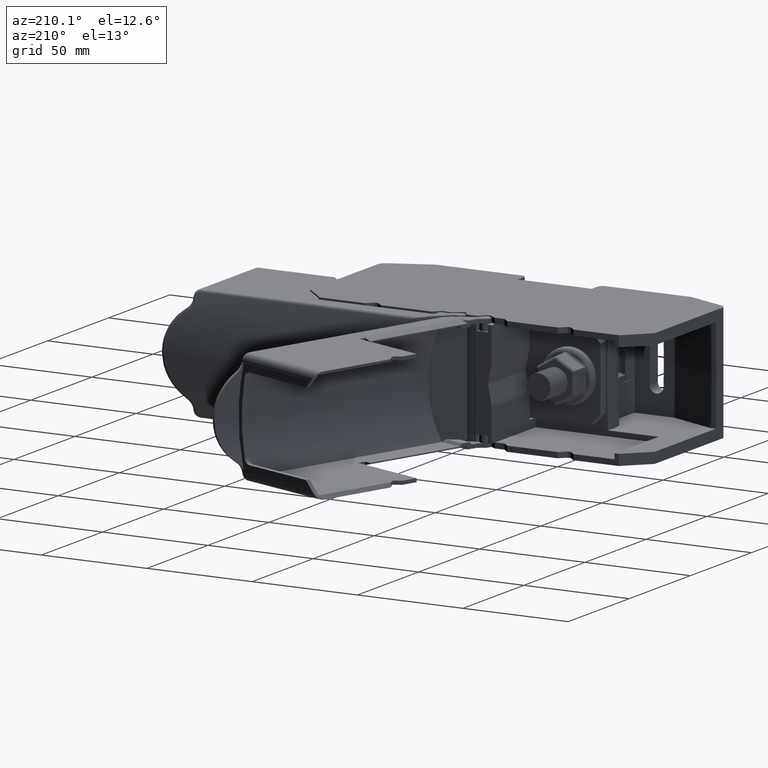
[diagram: clean part render]
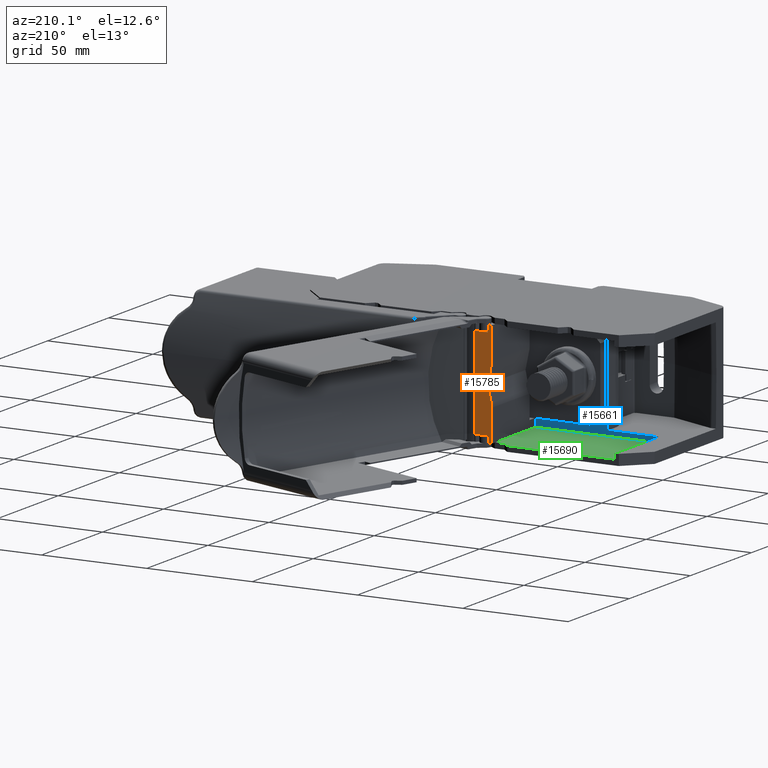
[diagram: same view with three faces highlighted in distinct colors, each labeled with its STEP entity id]
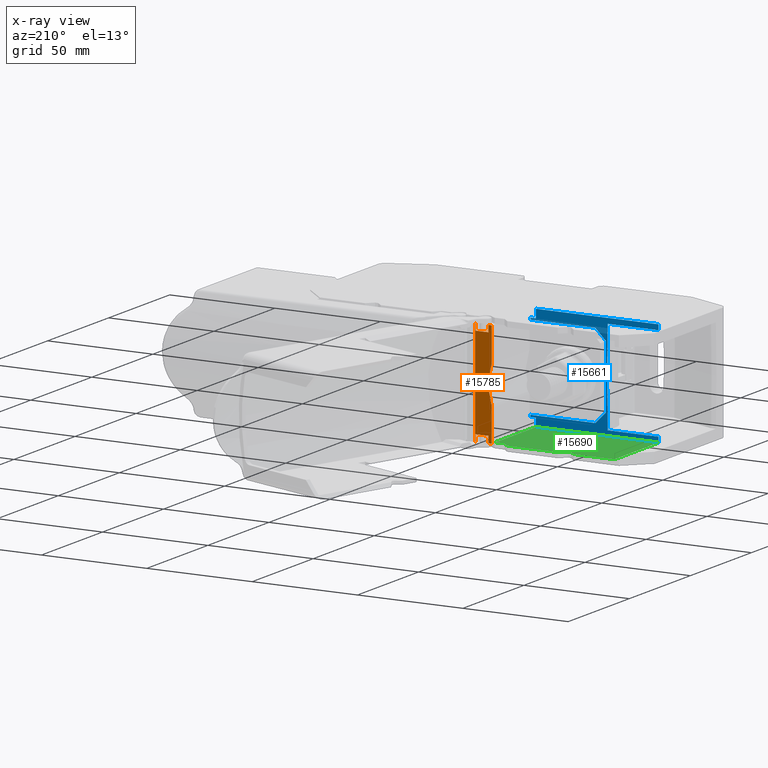
[diagram: x-ray of the same camera — body ghosted, the three highlighted faces saturated]
A machine part, auxiliary view with three faces highlighted in distinct colors.
The next image is the same camera in x-ray (body ghosted, the three faces saturated) — at least one of them is partly hidden behind the body in this view.
Their STEP definitions:

[orange] entity #15785 — the highlighted planar face has unit normal (0, 1, 0).
#2366 = VERTEX_POINT ( 'NONE', #39024 ) ;
#2369 = VERTEX_POINT ( 'NONE', #39052 ) ;
#2370 = VERTEX_POINT ( 'NONE', #39069 ) ;
#2421 = VERTEX_POINT ( 'NONE', #39118 ) ;
#2429 = VERTEX_POINT ( 'NONE', #39097 ) ;
#2431 = VERTEX_POINT ( 'NONE', #39111 ) ;
#2440 = VERTEX_POINT ( 'NONE', #39115 ) ;
#2441 = VERTEX_POINT ( 'NONE', #39095 ) ;
#2476 = VERTEX_POINT ( 'NONE', #39150 ) ;
#2478 = VERTEX_POINT ( 'NONE', #39151 ) ;
#2487 = VERTEX_POINT ( 'NONE', #39193 ) ;
#2521 = VERTEX_POINT ( 'NONE', #39212 ) ;
#2579 = VERTEX_POINT ( 'NONE', #39273 ) ;
#3813 = VECTOR ( 'NONE', #28216, 1000.000000000000000 ) ;
#3882 = VECTOR ( 'NONE', #28222, 1000.000000000000000 ) ;
#4003 = VECTOR ( 'NONE', #16701, 1000.000000000000000 ) ;
#4007 = VECTOR ( 'NONE', #16774, 1000.000000000000000 ) ;
#4019 = VECTOR ( 'NONE', #16799, 1000.000000000000000 ) ;
#8766 = EDGE_CURVE ( 'NONE', #20758, #20816, #15264, .T. ) ;
#15264 = B_SPLINE_CURVE_WITH_KNOTS ( 'NONE', 3,
 ( #37481, #37471, #37462, #37449 ),
 .UNSPECIFIED., .F., .F.,
 ( 4, 4 ),
 ( 0.0000000000000000000, 1.000000000000000000 ),
 .UNSPECIFIED. ) ;
#15441 = B_SPLINE_CURVE_WITH_KNOTS ( 'NONE', 3,
 ( #30685, #30673, #30684, #30678 ),
 .UNSPECIFIED., .F., .F.,
 ( 4, 4 ),
 ( 0.0000000000000000000, 1.000000000000000000 ),
 .UNSPECIFIED. ) ;
#15483 = B_SPLINE_CURVE_WITH_KNOTS ( 'NONE', 3,
 ( #28094, #28017, #28018, #28053 ),
 .UNSPECIFIED., .F., .F.,
 ( 4, 4 ),
 ( 0.0000000000000000000, 1.000000000000000000 ),
 .UNSPECIFIED. ) ;
#15484 = B_SPLINE_CURVE_WITH_KNOTS ( 'NONE', 3,
 ( #28190, #28192, #28145, #28147 ),
 .UNSPECIFIED., .F., .F.,
 ( 4, 4 ),
 ( 0.0000000000000000000, 1.000000000000000000 ),
 .UNSPECIFIED. ) ;
#15488 = B_SPLINE_CURVE_WITH_KNOTS ( 'NONE', 3,
 ( #28678, #28680, #28684, #28682 ),
 .UNSPECIFIED., .F., .F.,
 ( 4, 4 ),
 ( 0.0000000000000000000, 1.000000000000000000 ),
 .UNSPECIFIED. ) ;
#15497 = B_SPLINE_CURVE_WITH_KNOTS ( 'NONE', 3,
 ( #28286, #28229, #28240, #28231 ),
 .UNSPECIFIED., .F., .F.,
 ( 4, 4 ),
 ( 0.0000000000000000000, 1.000000000000000000 ),
 .UNSPECIFIED. ) ;
#15498 = B_SPLINE_CURVE_WITH_KNOTS ( 'NONE', 3,
 ( #27948, #27928, #27908, #27915 ),
 .UNSPECIFIED., .F., .F.,
 ( 4, 4 ),
 ( 0.0000000000000000000, 1.000000000000000000 ),
 .UNSPECIFIED. ) ;
#15503 = B_SPLINE_CURVE_WITH_KNOTS ( 'NONE', 3,
 ( #27937, #27920, #27942, #27943 ),
 .UNSPECIFIED., .F., .F.,
 ( 4, 4 ),
 ( 0.0000000000000000000, 1.000000000000000000 ),
 .UNSPECIFIED. ) ;
#15520 = B_SPLINE_CURVE_WITH_KNOTS ( 'NONE', 3,
 ( #27934, #27935, #27946, #27936 ),
 .UNSPECIFIED., .F., .F.,
 ( 4, 4 ),
 ( 0.0000000000000000000, 1.000000000000000000 ),
 .UNSPECIFIED. ) ;
#15529 = B_SPLINE_CURVE_WITH_KNOTS ( 'NONE', 3,
 ( #28568, #28618, #28592, #28593 ),
 .UNSPECIFIED., .F., .F.,
 ( 4, 4 ),
 ( 0.0000000000000000000, 1.000000000000000000 ),
 .UNSPECIFIED. ) ;
#15537 = B_SPLINE_CURVE_WITH_KNOTS ( 'NONE', 3,
 ( #27988, #27989, #28023, #28086 ),
 .UNSPECIFIED., .F., .F.,
 ( 4, 4 ),
 ( 0.0000000000000000000, 1.000000000000000000 ),
 .UNSPECIFIED. ) ;
#15541 = B_SPLINE_CURVE_WITH_KNOTS ( 'NONE', 3,
 ( #27966, #27969, #27984, #27997 ),
 .UNSPECIFIED., .F., .F.,
 ( 4, 4 ),
 ( 0.0000000000000000000, 1.000000000000000000 ),
 .UNSPECIFIED. ) ;
#15785 = ADVANCED_FACE ( 'NONE', ( #26399 ), #26472, .T. ) ;
#16649 = LINE ( 'NONE', #16689, #4003 ) ;
#16689 = CARTESIAN_POINT ( 'NONE',  ( 449.4385251663119900, -196.3707966989011600, -17.80000000002209100 ) ) ;
#16701 = DIRECTION ( 'NONE',  ( -1.000000000000000000, -0.0000000000000000000, 0.0000000000000000000 ) ) ;
#16758 = LINE ( 'NONE', #16780, #4019 ) ;
#16770 = CARTESIAN_POINT ( 'NONE',  ( 449.4385251663119900, -196.3707966989011600, -20.89999999998940100 ) ) ;
#16774 = DIRECTION ( 'NONE',  ( -1.000000000000000000, -0.0000000000000000000, 0.0000000000000000000 ) ) ;
#16780 = CARTESIAN_POINT ( 'NONE',  ( 429.1083979782019900, -196.3707966989011600, -23.40000000000410200 ) ) ;
#16799 = DIRECTION ( 'NONE',  ( -0.0000000000000000000, -0.0000000000000000000, -1.000000000000000000 ) ) ;
#16803 = LINE ( 'NONE', #16770, #4007 ) ;
#18322 = ORIENTED_EDGE ( 'NONE', *, *, #33114, .T. ) ;
#18357 = ORIENTED_EDGE ( 'NONE', *, *, #32653, .T. ) ;
#18360 = ORIENTED_EDGE ( 'NONE', *, *, #33135, .T. ) ;
#18361 = ORIENTED_EDGE ( 'NONE', *, *, #33184, .T. ) ;
#18368 = ORIENTED_EDGE ( 'NONE', *, *, #33163, .T. ) ;
#18370 = ORIENTED_EDGE ( 'NONE', *, *, #8766, .T. ) ;
#18378 = ORIENTED_EDGE ( 'NONE', *, *, #33335, .T. ) ;
#18379 = ORIENTED_EDGE ( 'NONE', *, *, #33621, .F. ) ;
#18390 = ORIENTED_EDGE ( 'NONE', *, *, #33182, .T. ) ;
#18399 = ORIENTED_EDGE ( 'NONE', *, *, #33192, .T. ) ;
#18403 = ORIENTED_EDGE ( 'NONE', *, *, #33112, .T. ) ;
#18405 = ORIENTED_EDGE ( 'NONE', *, *, #33072, .T. ) ;
#18406 = ORIENTED_EDGE ( 'NONE', *, *, #33297, .T. ) ;
#18416 = ORIENTED_EDGE ( 'NONE', *, *, #33063, .T. ) ;
#18424 = ORIENTED_EDGE ( 'NONE', *, *, #33074, .T. ) ;
#18429 = ORIENTED_EDGE ( 'NONE', *, *, #33543, .T. ) ;
#18438 = ORIENTED_EDGE ( 'NONE', *, *, #33603, .T. ) ;
#20421 = EDGE_LOOP ( 'NONE', ( #18368, #18438, #18379, #18360, #18416, #18424, #18322, #18390, #18406, #18361, #18378, #18403, #18370, #18399, #18357, #18405, #18429 ) ) ;
#20758 = VERTEX_POINT ( 'NONE', #29798 ) ;
#20816 = VERTEX_POINT ( 'NONE', #29820 ) ;
#21257 = VERTEX_POINT ( 'NONE', #30224 ) ;
#21285 = VERTEX_POINT ( 'NONE', #30218 ) ;
#24471 = AXIS2_PLACEMENT_3D ( 'NONE', #26492, #26535, #26576 ) ;
#26399 = FACE_OUTER_BOUND ( 'NONE', #20421, .T. ) ;
#26472 = PLANE ( 'NONE',  #24471 ) ;
#26492 = CARTESIAN_POINT ( 'NONE',  ( 449.4385251663119900, -196.3707966989011600, -23.40000000000410200 ) ) ;
#26535 = DIRECTION ( 'NONE',  ( 0.0000000000000000000, 1.000000000000000000, 0.0000000000000000000 ) ) ;
#26576 = DIRECTION ( 'NONE',  ( 0.0000000000000000000, -0.0000000000000000000, 1.000000000000000000 ) ) ;
#27908 = CARTESIAN_POINT ( 'NONE',  ( 430.6702905426287200, -196.3707966989011600, 1.432354379845847300 ) ) ;
#27915 = CARTESIAN_POINT ( 'NONE',  ( 430.9710220002157300, -196.3707966306635300, 4.000010535679575000 ) ) ;
#27920 = CARTESIAN_POINT ( 'NONE',  ( 430.6702901869073200, -196.3707966989011600, 6.567659479159903700 ) ) ;
#27928 = CARTESIAN_POINT ( 'NONE',  ( 430.1568132109489400, -196.3707966989011600, -1.092027747636443700 ) ) ;
#27934 = CARTESIAN_POINT ( 'NONE',  ( 436.7499328640030300, -196.3711647729648700, -20.90000000002211400 ) ) ;
#27935 = CARTESIAN_POINT ( 'NONE',  ( 436.7499328640030300, -196.3707966989011600, -19.86666666667677800 ) ) ;
#27936 = CARTESIAN_POINT ( 'NONE',  ( 436.7499328640029100, -196.3711647729285800, -17.80000000002227300 ) ) ;
#27937 = CARTESIAN_POINT ( 'NONE',  ( 430.9710220002157300, -196.3707966306635300, 4.000010535679575000 ) ) ;
#27942 = CARTESIAN_POINT ( 'NONE',  ( 430.1568136777064500, -196.3707966989011600, 9.092034582853688800 ) ) ;
#27943 = CARTESIAN_POINT ( 'NONE',  ( 429.4305924726131700, -196.3707966580836600, 11.57313584676092700 ) ) ;
#27946 = CARTESIAN_POINT ( 'NONE',  ( 436.7499328640030300, -196.3707966989011600, -18.83333333334943300 ) ) ;
#27948 = CARTESIAN_POINT ( 'NONE',  ( 429.4305900051764400, -196.3707966989011600, -3.573135846767276000 ) ) ;
#27966 = CARTESIAN_POINT ( 'NONE',  ( 436.7499353313844500, -196.3711661739804700, 25.80000000000373800 ) ) ;
#27969 = CARTESIAN_POINT ( 'NONE',  ( 436.7499353313913800, -196.3707966989011600, 26.83333333334276500 ) ) ;
#27984 = CARTESIAN_POINT ( 'NONE',  ( 436.7499353313913800, -196.3707966989011600, 27.86666666668186900 ) ) ;
#27988 = CARTESIAN_POINT ( 'NONE',  ( 429.4305924726131700, -196.3707966580836600, 11.57313584676092700 ) ) ;
#27989 = CARTESIAN_POINT ( 'NONE',  ( 429.2159018500348100, -196.3707966989011600, 12.30692204748441100 ) ) ;
#27997 = CARTESIAN_POINT ( 'NONE',  ( 436.7499353313845600, -196.3711661587154000, 28.90000000002121900 ) ) ;
#28017 = CARTESIAN_POINT ( 'NONE',  ( 429.1085020402731500, -196.3707966989011600, -5.056089342955340600 ) ) ;
#28018 = CARTESIAN_POINT ( 'NONE',  ( 429.2158993825979700, -196.3707966989011600, -4.306922047490669300 ) ) ;
#28023 = CARTESIAN_POINT ( 'NONE',  ( 429.1085045077100500, -196.3707966989011600, 13.05608934294909900 ) ) ;
#28053 = CARTESIAN_POINT ( 'NONE',  ( 429.4305900051764400, -196.3707966989011600, -3.573135846767276000 ) ) ;
#28086 = CARTESIAN_POINT ( 'NONE',  ( 429.1084004456388900, -196.3707966988813800, 13.82063773315498200 ) ) ;
#28094 = CARTESIAN_POINT ( 'NONE',  ( 429.1083979782019900, -196.3707966989011600, -5.820637733161330400 ) ) ;
#28145 = CARTESIAN_POINT ( 'NONE',  ( 430.6539625409750400, -196.3707966989011600, -19.86666666666696200 ) ) ;
#28147 = CARTESIAN_POINT ( 'NONE',  ( 430.6539625409750400, -196.3711539379481500, -20.89999999998938300 ) ) ;
#28190 = CARTESIAN_POINT ( 'NONE',  ( 430.6539625409751000, -196.3711647729271600, -17.80000000002228000 ) ) ;
#28192 = CARTESIAN_POINT ( 'NONE',  ( 430.6539625409750400, -196.3707966989011600, -18.83333333334452700 ) ) ;
#28216 = DIRECTION ( 'NONE',  ( 0.0000000000000000000, -0.0000000000000000000, 1.000000000000000000 ) ) ;
#28222 = DIRECTION ( 'NONE',  ( -0.0000000000000000000, 0.0000000000000000000, -1.000000000000000000 ) ) ;
#28229 = CARTESIAN_POINT ( 'NONE',  ( 430.6539650083647100, -196.3707966989011600, 27.86666666666639000 ) ) ;
#28231 = CARTESIAN_POINT ( 'NONE',  ( 430.6539650083576600, -196.3711660439219900, 25.80000000000373500 ) ) ;
#28240 = CARTESIAN_POINT ( 'NONE',  ( 430.6539650083647100, -196.3707966989011600, 26.83333333333502300 ) ) ;
#28244 = LINE ( 'NONE', #28305, #3882 ) ;
#28265 = CARTESIAN_POINT ( 'NONE',  ( 429.1084004456388900, -196.3707966989011600, -23.40000000000410200 ) ) ;
#28286 = CARTESIAN_POINT ( 'NONE',  ( 430.6539650083579400, -196.3711551715317100, 28.90000000000893400 ) ) ;
#28305 = CARTESIAN_POINT ( 'NONE',  ( 436.9897283062944700, -196.3707966989011600, -23.40000000000410200 ) ) ;
#28307 = LINE ( 'NONE', #28265, #3813 ) ;
#28568 = CARTESIAN_POINT ( 'NONE',  ( 429.1084001461302400, -196.3707966988316400, 28.89999999999776000 ) ) ;
#28592 = CARTESIAN_POINT ( 'NONE',  ( 430.1387768207894200, -196.3707966989011600, 28.89999999999775700 ) ) ;
#28593 = CARTESIAN_POINT ( 'NONE',  ( 430.6539650083579400, -196.3711551715317100, 28.90000000000893400 ) ) ;
#28618 = CARTESIAN_POINT ( 'NONE',  ( 429.6235886332141800, -196.3707966989011600, 28.89999999999775700 ) ) ;
#28678 = CARTESIAN_POINT ( 'NONE',  ( 430.6539650083576600, -196.3711660439219900, 25.80000000000373500 ) ) ;
#28680 = CARTESIAN_POINT ( 'NONE',  ( 432.6859551160403000, -196.3707966989011600, 25.80000000000365600 ) ) ;
#28682 = CARTESIAN_POINT ( 'NONE',  ( 436.7499353313844500, -196.3711661739804700, 25.80000000000373800 ) ) ;
#28684 = CARTESIAN_POINT ( 'NONE',  ( 434.7179452237158400, -196.3707966989011600, 25.80000000000365600 ) ) ;
#29798 = CARTESIAN_POINT ( 'NONE',  ( 436.7499353313845600, -196.3711661587154000, 28.90000000002121900 ) ) ;
#29820 = CARTESIAN_POINT ( 'NONE',  ( 436.9897282685740800, -196.3707978103285300, 28.90000000000741300 ) ) ;
#30218 = CARTESIAN_POINT ( 'NONE',  ( 436.9897282119928300, -196.3707976241422000, -20.90000000000412700 ) ) ;
#30224 = CARTESIAN_POINT ( 'NONE',  ( 436.7499328640030300, -196.3711647729648700, -20.90000000002211400 ) ) ;
#30673 = CARTESIAN_POINT ( 'NONE',  ( 436.9097964921973000, -196.3707966989011600, -20.90000000000412000 ) ) ;
#30678 = CARTESIAN_POINT ( 'NONE',  ( 436.7499328640030300, -196.3711647729648700, -20.90000000002211400 ) ) ;
#30684 = CARTESIAN_POINT ( 'NONE',  ( 436.8298646781001900, -196.3707966989011600, -20.90000000000412000 ) ) ;
#30685 = CARTESIAN_POINT ( 'NONE',  ( 436.9897282119928300, -196.3707976241422000, -20.90000000000412700 ) ) ;
#32653 = EDGE_CURVE ( 'NONE', #21285, #21257, #15441, .T. ) ;
#33063 = EDGE_CURVE ( 'NONE', #2369, #2441, #15498, .T. ) ;
#33072 = EDGE_CURVE ( 'NONE', #21257, #2431, #15520, .T. ) ;
#33074 = EDGE_CURVE ( 'NONE', #2441, #2421, #15503, .T. ) ;
#33112 = EDGE_CURVE ( 'NONE', #2429, #20758, #15541, .T. ) ;
#33114 = EDGE_CURVE ( 'NONE', #2421, #2440, #15537, .T. ) ;
#33135 = EDGE_CURVE ( 'NONE', #2487, #2369, #15483, .T. ) ;
#33163 = EDGE_CURVE ( 'NONE', #2478, #2476, #15484, .T. ) ;
#33182 = EDGE_CURVE ( 'NONE', #2440, #2521, #28307, .T. ) ;
#33184 = EDGE_CURVE ( 'NONE', #2366, #2370, #15497, .T. ) ;
#33192 = EDGE_CURVE ( 'NONE', #20816, #21285, #28244, .T. ) ;
#33297 = EDGE_CURVE ( 'NONE', #2521, #2366, #15529, .T. ) ;
#33335 = EDGE_CURVE ( 'NONE', #2370, #2429, #15488, .T. ) ;
#33543 = EDGE_CURVE ( 'NONE', #2431, #2478, #16649, .T. ) ;
#33603 = EDGE_CURVE ( 'NONE', #2476, #2579, #16803, .T. ) ;
#33621 = EDGE_CURVE ( 'NONE', #2487, #2579, #16758, .T. ) ;
#37449 = CARTESIAN_POINT ( 'NONE',  ( 436.9897282685740800, -196.3707978103285300, 28.90000000000741300 ) ) ;
#37462 = CARTESIAN_POINT ( 'NONE',  ( 436.9097972517925000, -196.3707966989011600, 28.90000000002097400 ) ) ;
#37471 = CARTESIAN_POINT ( 'NONE',  ( 436.8298662915920000, -196.3707966989011600, 28.90000000002097400 ) ) ;
#37481 = CARTESIAN_POINT ( 'NONE',  ( 436.7499353313845600, -196.3711661587154000, 28.90000000002121900 ) ) ;
#39024 = CARTESIAN_POINT ( 'NONE',  ( 430.6539650083579400, -196.3711551715317100, 28.90000000000893400 ) ) ;
#39052 = CARTESIAN_POINT ( 'NONE',  ( 429.4305900051764400, -196.3707966989011600, -3.573135846767276000 ) ) ;
#39069 = CARTESIAN_POINT ( 'NONE',  ( 430.6539650083576600, -196.3711660439219900, 25.80000000000373500 ) ) ;
#39095 = CARTESIAN_POINT ( 'NONE',  ( 430.9710220002157300, -196.3707966306635300, 4.000010535679575000 ) ) ;
#39097 = CARTESIAN_POINT ( 'NONE',  ( 436.7499353313844500, -196.3711661739804700, 25.80000000000373800 ) ) ;
#39111 = CARTESIAN_POINT ( 'NONE',  ( 436.7499328640029100, -196.3711647729285800, -17.80000000002227300 ) ) ;
#39115 = CARTESIAN_POINT ( 'NONE',  ( 429.1084004456388900, -196.3707966988813800, 13.82063773315498200 ) ) ;
#39118 = CARTESIAN_POINT ( 'NONE',  ( 429.4305924726131700, -196.3707966580836600, 11.57313584676092700 ) ) ;
#39150 = CARTESIAN_POINT ( 'NONE',  ( 430.6539625409750400, -196.3711539379481500, -20.89999999998938300 ) ) ;
#39151 = CARTESIAN_POINT ( 'NONE',  ( 430.6539625409751000, -196.3711647729271600, -17.80000000002228000 ) ) ;
#39193 = CARTESIAN_POINT ( 'NONE',  ( 429.1083979782019900, -196.3707966989011600, -5.820637733161330400 ) ) ;
#39212 = CARTESIAN_POINT ( 'NONE',  ( 429.1084001461302400, -196.3707966988316400, 28.89999999999776000 ) ) ;
#39273 = CARTESIAN_POINT ( 'NONE',  ( 429.1083979782019900, -196.3707966989011600, -20.89999999999674800 ) ) ;

[blue] entity #15661 — the highlighted planar face has unit normal (0, 1, -0).
#310 = LINE ( 'NONE', #321, #18934 ) ;
#313 = DIRECTION ( 'NONE',  ( 1.000000000000000000, -6.346126799884172800E-052, 4.867835802386780300E-030 ) ) ;
#321 = CARTESIAN_POINT ( 'NONE',  ( 325.5178421804045000, -232.3717367723395500, -18.40000000000411600 ) ) ;
#423 = CARTESIAN_POINT ( 'NONE',  ( 395.2504700703480000, -232.3717364852668900, 2.782812144994005100 ) ) ;
#429 = DIRECTION ( 'NONE',  ( -1.000000000000000000, -0.0000000000000000000, -6.982962677686269900E-015 ) ) ;
#433 = DIRECTION ( 'NONE',  ( 0.01745241084595759400, -0.0000000000000000000, 0.9998476950794376000 ) ) ;
#443 = LINE ( 'NONE', #423, #18971 ) ;
#461 = CARTESIAN_POINT ( 'NONE',  ( 325.5178421804040500, -232.3717366670575800, 26.39999999999704600 ) ) ;
#507 = LINE ( 'NONE', #461, #18926 ) ;
#2399 = VERTEX_POINT ( 'NONE', #39098 ) ;
#2404 = VERTEX_POINT ( 'NONE', #39077 ) ;
#2408 = VERTEX_POINT ( 'NONE', #39084 ) ;
#2447 = VERTEX_POINT ( 'NONE', #39119 ) ;
#2464 = VERTEX_POINT ( 'NONE', #39147 ) ;
#2489 = VERTEX_POINT ( 'NONE', #39154 ) ;
#2491 = VERTEX_POINT ( 'NONE', #39162 ) ;
#2514 = VERTEX_POINT ( 'NONE', #39140 ) ;
#2515 = VERTEX_POINT ( 'NONE', #39225 ) ;
#2516 = VERTEX_POINT ( 'NONE', #39226 ) ;
#2537 = VERTEX_POINT ( 'NONE', #39206 ) ;
#2575 = VERTEX_POINT ( 'NONE', #39256 ) ;
#2612 = VERTEX_POINT ( 'NONE', #39291 ) ;
#2628 = VERTEX_POINT ( 'NONE', #39302 ) ;
#2645 = VERTEX_POINT ( 'NONE', #39384 ) ;
#2658 = VERTEX_POINT ( 'NONE', #39332 ) ;
#2660 = VERTEX_POINT ( 'NONE', #39344 ) ;
#3487 = VECTOR ( 'NONE', #17038, 1000.000000000000000 ) ;
#3669 = VECTOR ( 'NONE', #30734, 1000.000000000000000 ) ;
#3724 = VECTOR ( 'NONE', #30740, 1000.000000000000000 ) ;
#3809 = VECTOR ( 'NONE', #27973, 1000.000000000000000 ) ;
#3831 = VECTOR ( 'NONE', #28045, 1000.000000000000000 ) ;
#3852 = VECTOR ( 'NONE', #28139, 1000.000000000000000 ) ;
#3859 = VECTOR ( 'NONE', #27977, 1000.000000000000000 ) ;
#3866 = VECTOR ( 'NONE', #28472, 1000.000000000000000 ) ;
#3879 = VECTOR ( 'NONE', #28449, 1000.000000000000000 ) ;
#3901 = VECTOR ( 'NONE', #28463, 1000.000000000000000 ) ;
#3905 = VECTOR ( 'NONE', #28455, 1000.000000000000000 ) ;
#3948 = VECTOR ( 'NONE', #28670, 1000.000000000000000 ) ;
#4057 = VECTOR ( 'NONE', #16865, 1000.000000000000000 ) ;
#4060 = VECTOR ( 'NONE', #16917, 1000.000000000000000 ) ;
#4086 = VECTOR ( 'NONE', #16862, 1000.000000000000000 ) ;
#15661 = ADVANCED_FACE ( 'NONE', ( #26678 ), #26697, .T. ) ;
#16840 = LINE ( 'NONE', #16896, #4086 ) ;
#16862 = DIRECTION ( 'NONE',  ( -1.000000000000000000, 0.0000000000000000000, -0.0000000000000000000 ) ) ;
#16865 = DIRECTION ( 'NONE',  ( 0.0000000000000000000, 0.0000000000000000000, 1.000000000000000000 ) ) ;
#16874 = CARTESIAN_POINT ( 'NONE',  ( 370.7734354635796900, -232.3717377583429300, -20.90000000000409800 ) ) ;
#16896 = CARTESIAN_POINT ( 'NONE',  ( 436.1083979782019900, -232.3717378972797900, -20.90000000000409800 ) ) ;
#16905 = LINE ( 'NONE', #16874, #4057 ) ;
#16917 = DIRECTION ( 'NONE',  ( -8.648115415565488900E-031, -2.316105715148474800E-023, -1.000000000000000000 ) ) ;
#16921 = CARTESIAN_POINT ( 'NONE',  ( 429.1083979782019900, -232.3717379450859800, 3.999999999997155200 ) ) ;
#16938 = LINE ( 'NONE', #16921, #4060 ) ;
#17027 = LINE ( 'NONE', #17034, #3487 ) ;
#17034 = CARTESIAN_POINT ( 'NONE',  ( 370.7734365867760900, -232.3717357669147800, 3.999999999997155200 ) ) ;
#17038 = DIRECTION ( 'NONE',  ( 8.648115415565488900E-031, 2.316105715148474800E-023, 1.000000000000000000 ) ) ;
#17433 = LINE ( 'NONE', #17448, #18890 ) ;
#17448 = CARTESIAN_POINT ( 'NONE',  ( 395.2717166529498600, -232.3717366816569300, 4.000027739462360000 ) ) ;
#17463 = DIRECTION ( 'NONE',  ( -0.01745241774356743500, 6.516569766889636100E-010, 0.9998476949590392500 ) ) ;
#18326 = ORIENTED_EDGE ( 'NONE', *, *, #33238, .T. ) ;
#18330 = ORIENTED_EDGE ( 'NONE', *, *, #33262, .T. ) ;
#18331 = ORIENTED_EDGE ( 'NONE', *, *, #32676, .F. ) ;
#18332 = ORIENTED_EDGE ( 'NONE', *, *, #32714, .F. ) ;
#18335 = ORIENTED_EDGE ( 'NONE', *, *, #33710, .T. ) ;
#18336 = ORIENTED_EDGE ( 'NONE', *, *, #33657, .T. ) ;
#18339 = ORIENTED_EDGE ( 'NONE', *, *, #33332, .T. ) ;
#18369 = ORIENTED_EDGE ( 'NONE', *, *, #33116, .T. ) ;
#18371 = ORIENTED_EDGE ( 'NONE', *, *, #33105, .T. ) ;
#18380 = ORIENTED_EDGE ( 'NONE', *, *, #34154, .T. ) ;
#18389 = ORIENTED_EDGE ( 'NONE', *, *, #33672, .T. ) ;
#18402 = ORIENTED_EDGE ( 'NONE', *, *, #33144, .T. ) ;
#18408 = ORIENTED_EDGE ( 'NONE', *, *, #34125, .T. ) ;
#18414 = ORIENTED_EDGE ( 'NONE', *, *, #34159, .T. ) ;
#18422 = ORIENTED_EDGE ( 'NONE', *, *, #33761, .T. ) ;
#18423 = ORIENTED_EDGE ( 'NONE', *, *, #33959, .T. ) ;
#18426 = ORIENTED_EDGE ( 'NONE', *, *, #33079, .T. ) ;
#18427 = ORIENTED_EDGE ( 'NONE', *, *, #33252, .T. ) ;
#18430 = ORIENTED_EDGE ( 'NONE', *, *, #33265, .T. ) ;
#18890 = VECTOR ( 'NONE', #17463, 1000.000000000000200 ) ;
#18926 = VECTOR ( 'NONE', #429, 1000.000000000000000 ) ;
#18934 = VECTOR ( 'NONE', #313, 1000.000000000000000 ) ;
#18971 = VECTOR ( 'NONE', #433, 999.9999999999998900 ) ;
#20412 = EDGE_LOOP ( 'NONE', ( #18380, #18423, #18414, #18422, #18339, #18426, #18402, #18331, #18369, #18371, #18427, #18330, #18326, #18332, #18430, #18335, #18336, #18389, #18408 ) ) ;
#21262 = VERTEX_POINT ( 'NONE', #30210 ) ;
#21332 = VERTEX_POINT ( 'NONE', #30126 ) ;
#24074 = AXIS2_PLACEMENT_3D ( 'NONE', #26679, #26713, #26667 ) ;
#26667 = DIRECTION ( 'NONE',  ( -0.9999999999999993300, 3.733903577458722700E-008, 0.0000000000000000000 ) ) ;
#26678 = FACE_OUTER_BOUND ( 'NONE', #20412, .T. ) ;
#26679 = CARTESIAN_POINT ( 'NONE',  ( 325.5178421804045000, -232.3717340771145000, 3.999999999997155200 ) ) ;
#26697 = PLANE ( 'NONE',  #24074 ) ;
#26713 = DIRECTION ( 'NONE',  ( 3.733903577458722700E-008, 0.9999999999999993300, -2.316105715148476600E-023 ) ) ;
#27926 = LINE ( 'NONE', #27941, #3859 ) ;
#27941 = CARTESIAN_POINT ( 'NONE',  ( 429.1083991013979400, -232.3717379450860100, 3.999999999997155200 ) ) ;
#27968 = CARTESIAN_POINT ( 'NONE',  ( 400.7734615204407200, -232.3717368870867700, 23.99999999999581100 ) ) ;
#27973 = DIRECTION ( 'NONE',  ( -0.7071067811865465700, 2.640268263569181700E-008, -0.7071067811865480200 ) ) ;
#27977 = DIRECTION ( 'NONE',  ( -8.648115415565488900E-031, -2.316105715148474800E-023, -1.000000000000000000 ) ) ;
#28002 = LINE ( 'NONE', #27968, #3809 ) ;
#28014 = LINE ( 'NONE', #28065, #3831 ) ;
#28020 = LINE ( 'NONE', #28129, #3852 ) ;
#28045 = DIRECTION ( 'NONE',  ( -0.9999999999999993300, 3.733903577458722700E-008, 0.0000000000000000000 ) ) ;
#28065 = CARTESIAN_POINT ( 'NONE',  ( 325.5178421804045000, -232.3717340771145000, 23.99999999999580100 ) ) ;
#28129 = CARTESIAN_POINT ( 'NONE',  ( 325.5178421804045000, -232.3717340771145000, 24.89999999999775000 ) ) ;
#28139 = DIRECTION ( 'NONE',  ( 0.9999999999999993300, -3.733903577458722700E-008, -0.0000000000000000000 ) ) ;
#28344 = CARTESIAN_POINT ( 'NONE',  ( 325.5178421804045000, -232.3717340771145000, -16.00000000000400400 ) ) ;
#28428 = LINE ( 'NONE', #28344, #3879 ) ;
#28449 = DIRECTION ( 'NONE',  ( 0.9999999999999993300, -3.733903577458722700E-008, -0.0000000000000000000 ) ) ;
#28453 = CARTESIAN_POINT ( 'NONE',  ( 395.7734615204414600, -232.3717367003916100, -11.00000000000414200 ) ) ;
#28455 = DIRECTION ( 'NONE',  ( 0.7071067811865416900, -2.640268263568958400E-008, -0.7071067811865529000 ) ) ;
#28461 = CARTESIAN_POINT ( 'NONE',  ( 325.5178421804045000, -232.3717340771145000, -16.90000000000410200 ) ) ;
#28463 = DIRECTION ( 'NONE',  ( -0.9999999999999993300, 3.733903577458722700E-008, 0.0000000000000000000 ) ) ;
#28472 = DIRECTION ( 'NONE',  ( -8.648115415565488900E-031, -2.316105715148474800E-023, -1.000000000000000000 ) ) ;
#28479 = CARTESIAN_POINT ( 'NONE',  ( 395.7734615204413400, -232.3717367003916100, 3.999999999997155200 ) ) ;
#28497 = LINE ( 'NONE', #28461, #3901 ) ;
#28503 = LINE ( 'NONE', #28479, #3866 ) ;
#28538 = LINE ( 'NONE', #28453, #3905 ) ;
#28638 = LINE ( 'NONE', #28668, #3948 ) ;
#28668 = CARTESIAN_POINT ( 'NONE',  ( 325.5178421804045000, -232.3717340771145000, 28.89999999999735200 ) ) ;
#28670 = DIRECTION ( 'NONE',  ( 0.9999999999999993300, -3.733903577458722700E-008, -0.0000000000000000000 ) ) ;
#30126 = CARTESIAN_POINT ( 'NONE',  ( 431.5875047262055100, -232.3717380376534700, 23.99999999999580100 ) ) ;
#30210 = CARTESIAN_POINT ( 'NONE',  ( 431.5875047262055100, -232.3717380380727200, -16.00000000000420600 ) ) ;
#30691 = LINE ( 'NONE', #30708, #3669 ) ;
#30708 = CARTESIAN_POINT ( 'NONE',  ( 431.5875047262055100, -232.3717380376534700, 31.49999999999469900 ) ) ;
#30734 = DIRECTION ( 'NONE',  ( 0.0000000000000000000, 0.0000000000000000000, 1.000000000000000000 ) ) ;
#30740 = DIRECTION ( 'NONE',  ( 0.0000000000000000000, 0.0000000000000000000, 1.000000000000000000 ) ) ;
#30768 = LINE ( 'NONE', #30799, #3724 ) ;
#30799 = CARTESIAN_POINT ( 'NONE',  ( 431.5875047262055100, -232.3717380380727200, 31.49999999999469900 ) ) ;
#32676 = EDGE_CURVE ( 'NONE', #21332, #2399, #30691, .T. ) ;
#32714 = EDGE_CURVE ( 'NONE', #2408, #21262, #30768, .T. ) ;
#33079 = EDGE_CURVE ( 'NONE', #2404, #2491, #27926, .T. ) ;
#33105 = EDGE_CURVE ( 'NONE', #2514, #2515, #28002, .T. ) ;
#33116 = EDGE_CURVE ( 'NONE', #21332, #2514, #28014, .T. ) ;
#33144 = EDGE_CURVE ( 'NONE', #2491, #2399, #28020, .T. ) ;
#33238 = EDGE_CURVE ( 'NONE', #2447, #21262, #28428, .T. ) ;
#33252 = EDGE_CURVE ( 'NONE', #2515, #2464, #28503, .T. ) ;
#33262 = EDGE_CURVE ( 'NONE', #2464, #2447, #28538, .T. ) ;
#33265 = EDGE_CURVE ( 'NONE', #2408, #2489, #28497, .T. ) ;
#33332 = EDGE_CURVE ( 'NONE', #2537, #2404, #28638, .T. ) ;
#33657 = EDGE_CURVE ( 'NONE', #2575, #2516, #16840, .T. ) ;
#33672 = EDGE_CURVE ( 'NONE', #2516, #2658, #16905, .T. ) ;
#33710 = EDGE_CURVE ( 'NONE', #2489, #2575, #16938, .T. ) ;
#33761 = EDGE_CURVE ( 'NONE', #2645, #2537, #17027, .T. ) ;
#33959 = EDGE_CURVE ( 'NONE', #2612, #2660, #17433, .T. ) ;
#34125 = EDGE_CURVE ( 'NONE', #2658, #2628, #310, .T. ) ;
#34154 = EDGE_CURVE ( 'NONE', #2628, #2612, #443, .T. ) ;
#34159 = EDGE_CURVE ( 'NONE', #2660, #2645, #507, .T. ) ;
#39077 = CARTESIAN_POINT ( 'NONE',  ( 429.1083991013980500, -232.3717369306650400, 28.89999999999755400 ) ) ;
#39084 = CARTESIAN_POINT ( 'NONE',  ( 431.5875047262055100, -232.3717380377931900, -16.90000000000410200 ) ) ;
#39098 = CARTESIAN_POINT ( 'NONE',  ( 431.5875047262055100, -232.3717380376964200, 24.89999999999775700 ) ) ;
#39119 = CARTESIAN_POINT ( 'NONE',  ( 400.7734615204412300, -232.3717370154031100, -16.00000000000404300 ) ) ;
#39140 = CARTESIAN_POINT ( 'NONE',  ( 400.7734615204406600, -232.3717376540787400, 23.99999999999580800 ) ) ;
#39147 = CARTESIAN_POINT ( 'NONE',  ( 395.7734615204414600, -232.3717371153720700, -11.00000000000412800 ) ) ;
#39154 = CARTESIAN_POINT ( 'NONE',  ( 429.1083979782019900, -232.3717379450859500, -16.90000000000410200 ) ) ;
#39162 = CARTESIAN_POINT ( 'NONE',  ( 429.1083991013982800, -232.3717379866941400, 24.89999999999775000 ) ) ;
#39206 = CARTESIAN_POINT ( 'NONE',  ( 370.7734367361360900, -232.3717358731815900, 28.89999999999735500 ) ) ;
#39225 = CARTESIAN_POINT ( 'NONE',  ( 395.7734615204413400, -232.3717373349486200, 18.99999999999645100 ) ) ;
#39226 = CARTESIAN_POINT ( 'NONE',  ( 370.7734354635796300, -232.3717378509674600, -20.90000000000409800 ) ) ;
#39256 = CARTESIAN_POINT ( 'NONE',  ( 429.1083979782019900, -232.3717379132151600, -20.90000000000409800 ) ) ;
#39291 = CARTESIAN_POINT ( 'NONE',  ( 395.2717166529498600, -232.3717365507302800, 4.000027739463155800 ) ) ;
#39302 = CARTESIAN_POINT ( 'NONE',  ( 394.8807226157633700, -232.3717366766486800, -18.40000000000238200 ) ) ;
#39332 = CARTESIAN_POINT ( 'NONE',  ( 370.7734354635796300, -232.3717371010073400, -18.40000000000411600 ) ) ;
#39344 = CARTESIAN_POINT ( 'NONE',  ( 394.8807234291418200, -232.3717366670575800, 26.39999999999957200 ) ) ;
#39384 = CARTESIAN_POINT ( 'NONE',  ( 370.7734365867760900, -232.3717363670099900, 26.39999999999945500 ) ) ;

[green] entity #15690 — the highlighted planar face has unit normal (0, 0, -1).
#2516 = VERTEX_POINT ( 'NONE', #39226 ) ;
#2532 = VERTEX_POINT ( 'NONE', #39219 ) ;
#2550 = VERTEX_POINT ( 'NONE', #39234 ) ;
#2553 = VERTEX_POINT ( 'NONE', #39245 ) ;
#2555 = VERTEX_POINT ( 'NONE', #39248 ) ;
#2559 = VERTEX_POINT ( 'NONE', #39261 ) ;
#2563 = VERTEX_POINT ( 'NONE', #39235 ) ;
#2575 = VERTEX_POINT ( 'NONE', #39256 ) ;
#2597 = VERTEX_POINT ( 'NONE', #39269 ) ;
#2653 = VERTEX_POINT ( 'NONE', #39329 ) ;
#3510 = VECTOR ( 'NONE', #17090, 1000.000000000000000 ) ;
#3560 = VECTOR ( 'NONE', #17039, 1000.000000000000000 ) ;
#3608 = VECTOR ( 'NONE', #17074, 1000.000000000000000 ) ;
#4086 = VECTOR ( 'NONE', #16862, 1000.000000000000000 ) ;
#15690 = ADVANCED_FACE ( 'NONE', ( #26823 ), #26842, .F. ) ;
#16840 = LINE ( 'NONE', #16896, #4086 ) ;
#16862 = DIRECTION ( 'NONE',  ( -1.000000000000000000, 0.0000000000000000000, -0.0000000000000000000 ) ) ;
#16896 = CARTESIAN_POINT ( 'NONE',  ( 436.1083979782019900, -232.3717378972797900, -20.90000000000409800 ) ) ;
#17032 = LINE ( 'NONE', #17033, #3560 ) ;
#17033 = CARTESIAN_POINT ( 'NONE',  ( 429.1083979782019900, -300.9468706890725100, -20.90000000000409800 ) ) ;
#17039 = DIRECTION ( 'NONE',  ( -0.0000000000000000000, -1.000000000000000000, -0.0000000000000000000 ) ) ;
#17041 = LINE ( 'NONE', #17045, #3608 ) ;
#17045 = CARTESIAN_POINT ( 'NONE',  ( 383.2734205285029800, -196.3707966989011600, -20.90000000000409800 ) ) ;
#17074 = DIRECTION ( 'NONE',  ( 1.000000000000000000, -8.673628034512460000E-016, -0.0000000000000000000 ) ) ;
#17090 = DIRECTION ( 'NONE',  ( 0.7071072202154656800, -0.7071063421573567900, -0.0000000000000000000 ) ) ;
#17108 = LINE ( 'NONE', #17109, #3510 ) ;
#17109 = CARTESIAN_POINT ( 'NONE',  ( 393.2734266081764600, -199.3707990532846300, -20.90000000000409800 ) ) ;
#17118 = LINE ( 'NONE', #17184, #18845 ) ;
#17121 = CARTESIAN_POINT ( 'NONE',  ( 397.7734282771064600, -196.3707966989011600, -20.90000000000409800 ) ) ;
#17140 = LINE ( 'NONE', #17121, #18858 ) ;
#17164 = DIRECTION ( 'NONE',  ( 0.7071072202154598000, 0.7071063421573626800, -0.0000000000000000000 ) ) ;
#17170 = CARTESIAN_POINT ( 'NONE',  ( 424.7684987345655300, -199.3707990532846300, -20.90000000000409800 ) ) ;
#17184 = CARTESIAN_POINT ( 'NONE',  ( 436.1083979782019900, -199.3707969151440100, -20.90000000000409800 ) ) ;
#17200 = DIRECTION ( 'NONE',  ( 0.7071072202154576900, -0.7071063421573646800, -0.0000000000000000000 ) ) ;
#17209 = DIRECTION ( 'NONE',  ( 1.000000000000000000, -0.0000000000000000000, 0.0000000000000000000 ) ) ;
#17211 = LINE ( 'NONE', #17170, #18848 ) ;
#17219 = CARTESIAN_POINT ( 'NONE',  ( 424.7684987345655300, -199.3707990532846300, -20.90000000000409800 ) ) ;
#17220 = DIRECTION ( 'NONE',  ( 1.000000000000000000, 0.0000000000000000000, -0.0000000000000000000 ) ) ;
#17230 = LINE ( 'NONE', #17244, #18834 ) ;
#17236 = LINE ( 'NONE', #17219, #18852 ) ;
#17244 = CARTESIAN_POINT ( 'NONE',  ( 370.7734354635796300, -300.9468706890725100, -20.90000000000409800 ) ) ;
#17261 = DIRECTION ( 'NONE',  ( 0.0000000000000000000, 1.000000000000000000, 0.0000000000000000000 ) ) ;
#17327 = CARTESIAN_POINT ( 'NONE',  ( 430.7684926548914700, -196.3707966989011600, -20.90000000000409800 ) ) ;
#17358 = DIRECTION ( 'NONE',  ( 1.000000000000000000, 4.206019315167090100E-016, -0.0000000000000000000 ) ) ;
#17367 = LINE ( 'NONE', #17327, #18853 ) ;
#18834 = VECTOR ( 'NONE', #17261, 1000.000000000000000 ) ;
#18845 = VECTOR ( 'NONE', #17209, 1000.000000000000000 ) ;
#18848 = VECTOR ( 'NONE', #17200, 1000.000000000000100 ) ;
#18852 = VECTOR ( 'NONE', #17220, 1000.000000000000000 ) ;
#18853 = VECTOR ( 'NONE', #17358, 1000.000000000000000 ) ;
#18858 = VECTOR ( 'NONE', #17164, 1000.000000000000000 ) ;
#20470 = EDGE_LOOP ( 'NONE', ( #30001, #30099, #29951, #29993, #30009, #30011, #30007, #29957, #30057, #29953 ) ) ;
#23974 = AXIS2_PLACEMENT_3D ( 'NONE', #26853, #26835, #26866 ) ;
#26823 = FACE_OUTER_BOUND ( 'NONE', #20470, .T. ) ;
#26835 = DIRECTION ( 'NONE',  ( 0.0000000000000000000, 0.0000000000000000000, -1.000000000000000000 ) ) ;
#26842 = PLANE ( 'NONE',  #23974 ) ;
#26853 = CARTESIAN_POINT ( 'NONE',  ( 436.1083979782019900, -300.9468706890725100, -20.90000000000409800 ) ) ;
#26866 = DIRECTION ( 'NONE',  ( -1.000000000000000000, 0.0000000000000000000, -0.0000000000000000000 ) ) ;
#29951 = ORIENTED_EDGE ( 'NONE', *, *, #33657, .F. ) ;
#29953 = ORIENTED_EDGE ( 'NONE', *, *, #33791, .F. ) ;
#29957 = ORIENTED_EDGE ( 'NONE', *, *, #33817, .F. ) ;
#29993 = ORIENTED_EDGE ( 'NONE', *, *, #33763, .F. ) ;
#30001 = ORIENTED_EDGE ( 'NONE', *, *, #33766, .F. ) ;
#30007 = ORIENTED_EDGE ( 'NONE', *, *, #33913, .F. ) ;
#30009 = ORIENTED_EDGE ( 'NONE', *, *, #33864, .F. ) ;
#30011 = ORIENTED_EDGE ( 'NONE', *, *, #33836, .F. ) ;
#30057 = ORIENTED_EDGE ( 'NONE', *, *, #33826, .F. ) ;
#30099 = ORIENTED_EDGE ( 'NONE', *, *, #33859, .F. ) ;
#33657 = EDGE_CURVE ( 'NONE', #2575, #2516, #16840, .T. ) ;
#33763 = EDGE_CURVE ( 'NONE', #2532, #2575, #17032, .T. ) ;
#33766 = EDGE_CURVE ( 'NONE', #2553, #2559, #17041, .T. ) ;
#33791 = EDGE_CURVE ( 'NONE', #2559, #2555, #17108, .T. ) ;
#33817 = EDGE_CURVE ( 'NONE', #2653, #2597, #17140, .T. ) ;
#33826 = EDGE_CURVE ( 'NONE', #2555, #2653, #17118, .T. ) ;
#33836 = EDGE_CURVE ( 'NONE', #2550, #2563, #17211, .T. ) ;
#33859 = EDGE_CURVE ( 'NONE', #2516, #2553, #17230, .T. ) ;
#33864 = EDGE_CURVE ( 'NONE', #2563, #2532, #17236, .T. ) ;
#33913 = EDGE_CURVE ( 'NONE', #2597, #2550, #17367, .T. ) ;
#39219 = CARTESIAN_POINT ( 'NONE',  ( 429.1083979782019900, -199.3707990532846300, -20.90000000000409800 ) ) ;
#39226 = CARTESIAN_POINT ( 'NONE',  ( 370.7734354635796300, -232.3717378509674600, -20.90000000000409800 ) ) ;
#39234 = CARTESIAN_POINT ( 'NONE',  ( 421.7684926548918200, -196.3707966989011300, -20.90000000000409800 ) ) ;
#39235 = CARTESIAN_POINT ( 'NONE',  ( 424.7684987345655300, -199.3707990532846300, -20.90000000000409800 ) ) ;
#39245 = CARTESIAN_POINT ( 'NONE',  ( 370.7734354635796300, -196.3707966989011600, -20.90000000000409800 ) ) ;
#39248 = CARTESIAN_POINT ( 'NONE',  ( 393.2734244680656300, -199.3707969141602200, -20.90000000000409800 ) ) ;
#39256 = CARTESIAN_POINT ( 'NONE',  ( 429.1083979782019900, -232.3717379132151600, -20.90000000000409800 ) ) ;
#39261 = CARTESIAN_POINT ( 'NONE',  ( 390.2734205285029200, -196.3707966989011900, -20.90000000000409800 ) ) ;
#39269 = CARTESIAN_POINT ( 'NONE',  ( 397.7734282771064600, -196.3707966989011600, -20.90000000000409800 ) ) ;
#39329 = CARTESIAN_POINT ( 'NONE',  ( 394.7734243355762900, -199.3707969151440100, -20.90000000000409800 ) ) ;